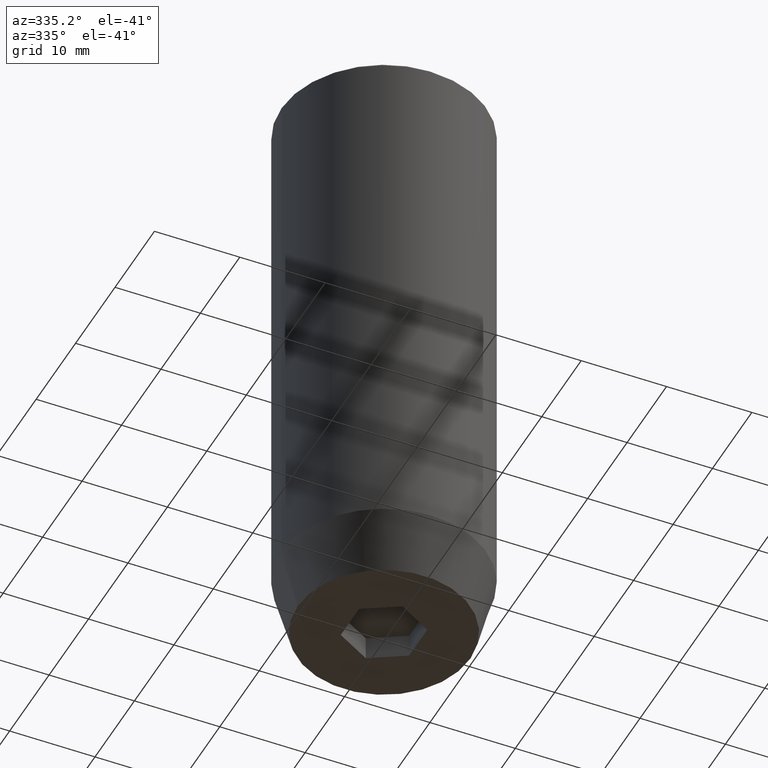
[diagram: clean part render]
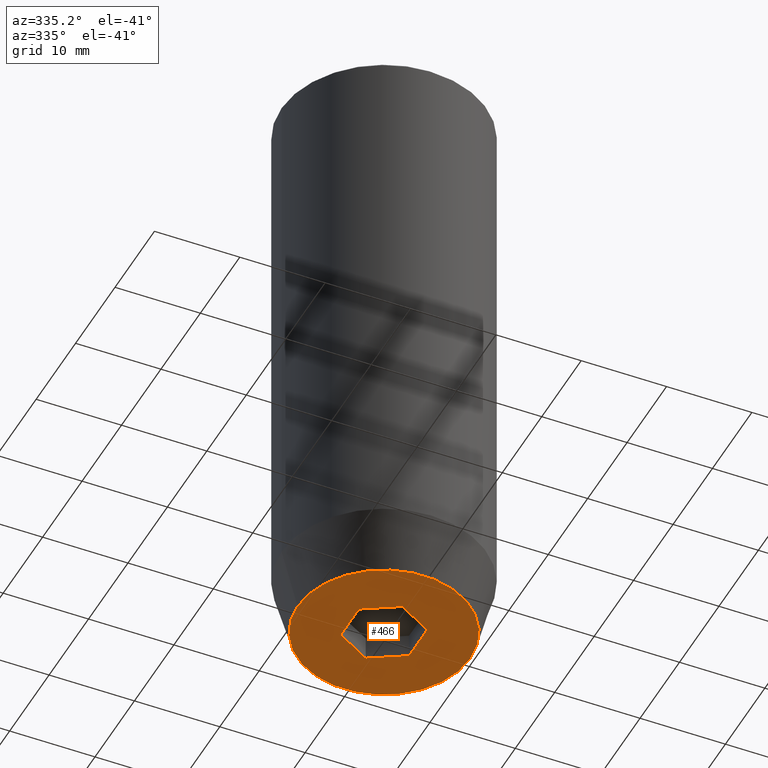
[diagram: same view with one face highlighted and labeled with its STEP entity id]
A machine part, auxiliary view. The second image highlights one B-rep face of the part: STEP entity #466.
In plain terms, the highlighted planar face has unit normal (0, 0, -1).
Its self-contained STEP definition (entity closure, byte-faithful):
#7 = CARTESIAN_POINT ( 'NONE',  ( -10.12435565298213547, 1.354726066681111050E-15, -70.00000000000000000 ) ) ;
#14 = VERTEX_POINT ( 'NONE', #166 ) ;
#18 = CARTESIAN_POINT ( 'NONE',  ( 2.000000000000000888, -3.464101615137754386, -70.00000000000000000 ) ) ;
#27 = DIRECTION ( 'NONE',  ( -1.000000000000000000, 0.000000000000000000, -0.000000000000000000 ) ) ;
#32 = CIRCLE ( 'NONE', #421, 10.12435565298213547 ) ;
#35 = EDGE_CURVE ( 'NONE', #519, #325, #394, .T. ) ;
#50 = LINE ( 'NONE', #218, #277 ) ;
#51 = CARTESIAN_POINT ( 'NONE',  ( 4.000000000000000000, 0.000000000000000000, -70.00000000000000000 ) ) ;
#52 = LINE ( 'NONE', #18, #350 ) ;
#73 = CARTESIAN_POINT ( 'NONE',  ( 4.000000000000000000, -2.309401076758502480, -70.00000000000000000 ) ) ;
#80 = DIRECTION ( 'NONE',  ( 0.8660254037844387076, 0.5000000000000001110, 0.000000000000000000 ) ) ;
#108 = CARTESIAN_POINT ( 'NONE',  ( -2.000000000000000000, 3.464101615137754830, -70.00000000000000000 ) ) ;
#123 = CARTESIAN_POINT ( 'NONE',  ( 10.12435565298213547, 0.000000000000000000, -70.00000000000000000 ) ) ;
#124 = VERTEX_POINT ( 'NONE', #127 ) ;
#126 = CARTESIAN_POINT ( 'NONE',  ( 0.000000000000000000, 0.000000000000000000, -70.00000000000000000 ) ) ;
#127 = CARTESIAN_POINT ( 'NONE',  ( -4.000000000000000000, 2.309401076758503368, -70.00000000000000000 ) ) ;
#142 = CARTESIAN_POINT ( 'NONE',  ( -4.000000000000000000, -2.309401076758503368, -70.00000000000000000 ) ) ;
#145 = EDGE_CURVE ( 'NONE', #14, #257, #50, .T. ) ;
#165 = FACE_OUTER_BOUND ( 'NONE', #473, .T. ) ;
#166 = CARTESIAN_POINT ( 'NONE',  ( 4.336808689942017736E-16, -4.618802153517006737, -70.00000000000000000 ) ) ;
#168 = ORIENTED_EDGE ( 'NONE', *, *, #411, .F. ) ;
#174 = EDGE_CURVE ( 'NONE', #257, #124, #549, .T. ) ;
#175 = VECTOR ( 'NONE', #80, 999.9999999999998863 ) ;
#178 = DIRECTION ( 'NONE',  ( -0.8660254037844384856, 0.5000000000000002220, 0.000000000000000000 ) ) ;
#182 = AXIS2_PLACEMENT_3D ( 'NONE', #372, #232, #185 ) ;
#185 = DIRECTION ( 'NONE',  ( 1.000000000000000000, 0.000000000000000000, 0.000000000000000000 ) ) ;
#194 = DIRECTION ( 'NONE',  ( 0.000000000000000000, 0.000000000000000000, -1.000000000000000000 ) ) ;
#203 = EDGE_CURVE ( 'NONE', #325, #480, #314, .T. ) ;
#208 = CARTESIAN_POINT ( 'NONE',  ( 0.000000000000000000, 4.618802153517006737, -70.00000000000000000 ) ) ;
#218 = CARTESIAN_POINT ( 'NONE',  ( -2.000000000000000888, -3.464101615137754386, -70.00000000000000000 ) ) ;
#225 = DIRECTION ( 'NONE',  ( 1.000000000000000000, 0.000000000000000000, 0.000000000000000000 ) ) ;
#227 = DIRECTION ( 'NONE',  ( 0.000000000000000000, -1.000000000000000000, 0.000000000000000000 ) ) ;
#230 = VERTEX_POINT ( 'NONE', #7 ) ;
#232 = DIRECTION ( 'NONE',  ( -0.000000000000000000, -0.000000000000000000, 1.000000000000000000 ) ) ;
#238 = VECTOR ( 'NONE', #246, 1000.000000000000000 ) ;
#246 = DIRECTION ( 'NONE',  ( 0.8660254037844385966, -0.5000000000000001110, 0.000000000000000000 ) ) ;
#248 = EDGE_CURVE ( 'NONE', #480, #14, #52, .T. ) ;
#257 = VERTEX_POINT ( 'NONE', #142 ) ;
#269 = EDGE_CURVE ( 'NONE', #488, #230, #419, .T. ) ;
#277 = VECTOR ( 'NONE', #178, 1000.000000000000114 ) ;
#284 = EDGE_LOOP ( 'NONE', ( #168, #410, #465, #336, #423, #413 ) ) ;
#314 = LINE ( 'NONE', #51, #367 ) ;
#316 = CARTESIAN_POINT ( 'NONE',  ( -4.000000000000000000, 0.000000000000000000, -70.00000000000000000 ) ) ;
#323 = CARTESIAN_POINT ( 'NONE',  ( 4.000000000000000000, 2.309401076758503368, -70.00000000000000000 ) ) ;
#325 = VERTEX_POINT ( 'NONE', #323 ) ;
#336 = ORIENTED_EDGE ( 'NONE', *, *, #248, .F. ) ;
#338 = LINE ( 'NONE', #108, #175 ) ;
#350 = VECTOR ( 'NONE', #558, 1000.000000000000114 ) ;
#364 = DIRECTION ( 'NONE',  ( 0.000000000000000000, 1.000000000000000000, 0.000000000000000000 ) ) ;
#367 = VECTOR ( 'NONE', #227, 1000.000000000000000 ) ;
#372 = CARTESIAN_POINT ( 'NONE',  ( 0.000000000000000000, 0.000000000000000000, -70.00000000000000000 ) ) ;
#386 = VECTOR ( 'NONE', #364, 1000.000000000000000 ) ;
#394 = LINE ( 'NONE', #574, #238 ) ;
#410 = ORIENTED_EDGE ( 'NONE', *, *, #174, .F. ) ;
#411 = EDGE_CURVE ( 'NONE', #124, #519, #338, .T. ) ;
#413 = ORIENTED_EDGE ( 'NONE', *, *, #35, .F. ) ;
#419 = CIRCLE ( 'NONE', #182, 10.12435565298213547 ) ;
#421 = AXIS2_PLACEMENT_3D ( 'NONE', #126, #498, #225 ) ;
#423 = ORIENTED_EDGE ( 'NONE', *, *, #203, .F. ) ;
#425 = PLANE ( 'NONE',  #520 ) ;
#465 = ORIENTED_EDGE ( 'NONE', *, *, #145, .F. ) ;
#466 = ADVANCED_FACE ( 'NONE', ( #573, #165 ), #425, .T. ) ;
#473 = EDGE_LOOP ( 'NONE', ( #579, #494 ) ) ;
#480 = VERTEX_POINT ( 'NONE', #73 ) ;
#488 = VERTEX_POINT ( 'NONE', #123 ) ;
#494 = ORIENTED_EDGE ( 'NONE', *, *, #548, .F. ) ;
#498 = DIRECTION ( 'NONE',  ( -0.000000000000000000, -0.000000000000000000, 1.000000000000000000 ) ) ;
#519 = VERTEX_POINT ( 'NONE', #208 ) ;
#520 = AXIS2_PLACEMENT_3D ( 'NONE', #539, #194, #27 ) ;
#539 = CARTESIAN_POINT ( 'NONE',  ( 0.000000000000000000, 10.12435565298213547, -70.00000000000000000 ) ) ;
#548 = EDGE_CURVE ( 'NONE', #230, #488, #32, .T. ) ;
#549 = LINE ( 'NONE', #316, #386 ) ;
#558 = DIRECTION ( 'NONE',  ( -0.8660254037844384856, -0.5000000000000002220, 0.000000000000000000 ) ) ;
#573 = FACE_BOUND ( 'NONE', #284, .T. ) ;
#574 = CARTESIAN_POINT ( 'NONE',  ( 2.000000000000000444, 3.464101615137754386, -70.00000000000000000 ) ) ;
#579 = ORIENTED_EDGE ( 'NONE', *, *, #269, .F. ) ;